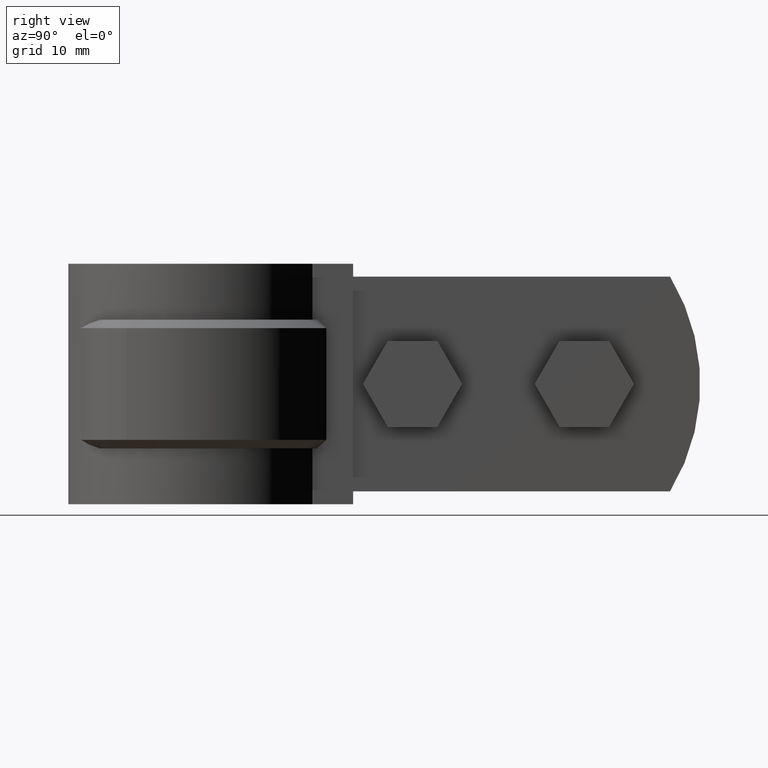
[diagram: clean part render]
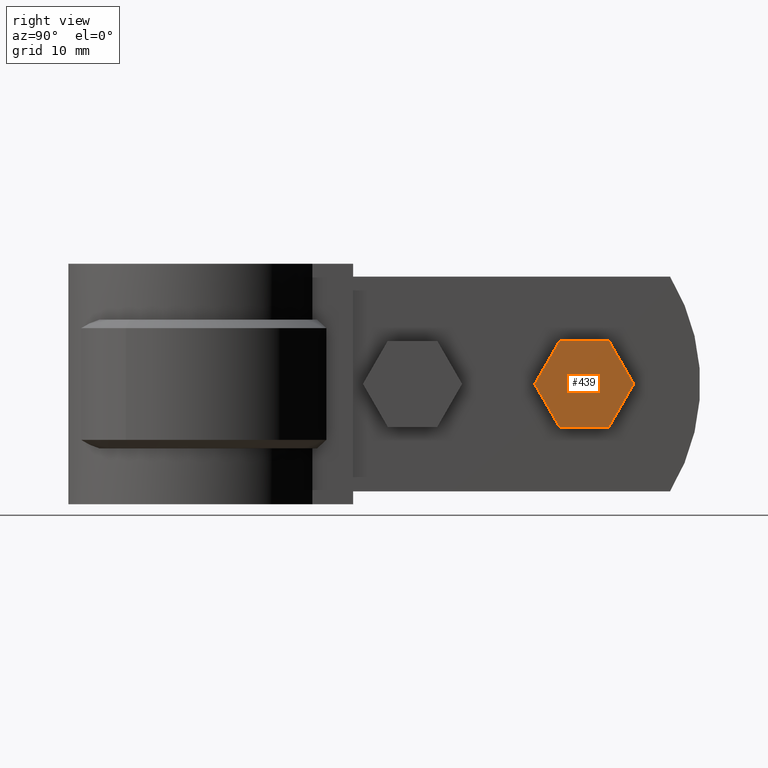
[diagram: same view with one face highlighted and labeled with its STEP entity id]
A machine part, right view. The second image highlights one B-rep face of the part: STEP entity #439.
In plain terms, the highlighted planar face has unit normal (-1, 0, -0).
Its self-contained STEP definition (entity closure, byte-faithful):
#439 = ADVANCED_FACE( '', ( #767 ), #768, .F. );
#767 = FACE_OUTER_BOUND( '', #1553, .T. );
#768 = PLANE( '', #1554 );
#1553 = EDGE_LOOP( '', ( #3682, #3683, #3684, #3685, #3686, #3687 ) );
#1554 = AXIS2_PLACEMENT_3D( '', #3688, #3689, #3690 );
#3682 = ORIENTED_EDGE( '', *, *, #4494, .T. );
#3683 = ORIENTED_EDGE( '', *, *, #4497, .T. );
#3684 = ORIENTED_EDGE( '', *, *, #4500, .T. );
#3685 = ORIENTED_EDGE( '', *, *, #4501, .T. );
#3686 = ORIENTED_EDGE( '', *, *, #4502, .T. );
#3687 = ORIENTED_EDGE( '', *, *, #4503, .T. );
#3688 = CARTESIAN_POINT( '', ( 9.10000000000012, 45.1980146622352, -22.5000000000003 ) );
#3689 = DIRECTION( '', ( -1.00000000000000, 1.21356006838940E-045, -7.00649232162396E-046 ) );
#3690 = DIRECTION( '', ( -1.40129846432480E-045, -0.866025403784439, 0.500000000000000 ) );
#4494 = EDGE_CURVE( '', #5226, #5224, #5227, .T. );
#4497 = EDGE_CURVE( '', #5224, #5229, #5231, .T. );
#4500 = EDGE_CURVE( '', #5229, #5236, #5237, .T. );
#4501 = EDGE_CURVE( '', #5236, #5238, #5239, .T. );
#4502 = EDGE_CURVE( '', #5238, #5240, #5241, .T. );
#4503 = EDGE_CURVE( '', #5240, #5226, #5242, .T. );
#5224 = VERTEX_POINT( '', #7542 );
#5226 = VERTEX_POINT( '', #7545 );
#5227 = LINE( '', #7546, #7547 );
#5229 = VERTEX_POINT( '', #7550 );
#5231 = LINE( '', #7553, #7554 );
#5236 = VERTEX_POINT( '', #7559 );
#5237 = LINE( '', #7560, #7561 );
#5238 = VERTEX_POINT( '', #7562 );
#5239 = LINE( '', #7563, #7564 );
#5240 = VERTEX_POINT( '', #7565 );
#5241 = LINE( '', #7566, #7567 );
#5242 = LINE( '', #7568, #7569 );
#7542 = CARTESIAN_POINT( '', ( 9.10000000000012, 50.9715173541317, -12.4999999999999 ) );
#7545 = CARTESIAN_POINT( '', ( 9.10000000000012, 48.0847660081835, -17.5000000000001 ) );
#7546 = CARTESIAN_POINT( '', ( 9.10000000000012, 48.0847660081835, -17.5000000000001 ) );
#7547 = VECTOR( '', #8386, 1000.00000000001 );
#7550 = CARTESIAN_POINT( '', ( 9.10000000000012, 48.0847660081836, -7.49999999999979 ) );
#7553 = CARTESIAN_POINT( '', ( 9.10000000000012, 50.9715173541317, -12.4999999999999 ) );
#7554 = VECTOR( '', #8389, 999.999999999992 );
#7559 = CARTESIAN_POINT( '', ( 9.10000000000012, 42.3112633162872, -7.49999999999987 ) );
#7560 = CARTESIAN_POINT( '', ( 9.10000000000012, 48.0847660081836, -7.49999999999979 ) );
#7561 = VECTOR( '', #8396, 999.999999999992 );
#7562 = CARTESIAN_POINT( '', ( 9.10000000000012, 39.4245119703390, -12.5000000000001 ) );
#7563 = CARTESIAN_POINT( '', ( 9.10000000000012, 42.3112633162872, -7.49999999999987 ) );
#7564 = VECTOR( '', #8397, 1000.00000000001 );
#7565 = CARTESIAN_POINT( '', ( 9.10000000000012, 42.3112633162871, -17.5000000000002 ) );
#7566 = CARTESIAN_POINT( '', ( 9.10000000000012, 39.4245119703390, -12.5000000000001 ) );
#7567 = VECTOR( '', #8398, 999.999999999992 );
#7568 = CARTESIAN_POINT( '', ( 9.10000000000012, 42.3112633162871, -17.5000000000002 ) );
#7569 = VECTOR( '', #8399, 999.999999999992 );
#8386 = DIRECTION( '', ( 4.77714892253123E-060, 0.500000000000000, 0.866025403784438 ) );
#8389 = DIRECTION( '', ( -1.21356006838939E-045, -0.499999999999989, 0.866025403784445 ) );
#8396 = DIRECTION( '', ( -1.21356006838939E-045, -1.00000000000000, -1.28785870856519E-014 ) );
#8397 = DIRECTION( '', ( -4.35611069450262E-060, -0.500000000000000, -0.866025403784439 ) );
#8398 = DIRECTION( '', ( 1.21356006838939E-045, 0.499999999999989, -0.866025403784445 ) );
#8399 = DIRECTION( '', ( 1.21356006838939E-045, 1.00000000000000, 1.28785870856519E-014 ) );